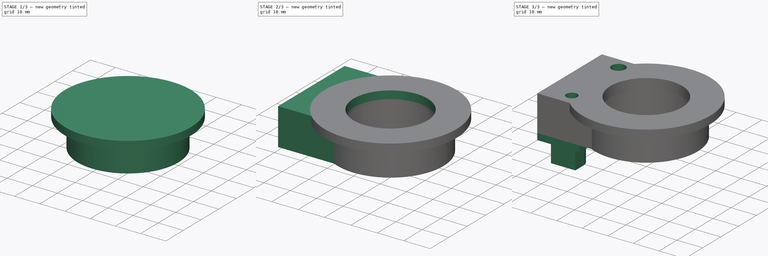
[diagram: build sequence overview — one tinted view per stage of 3, left to right]
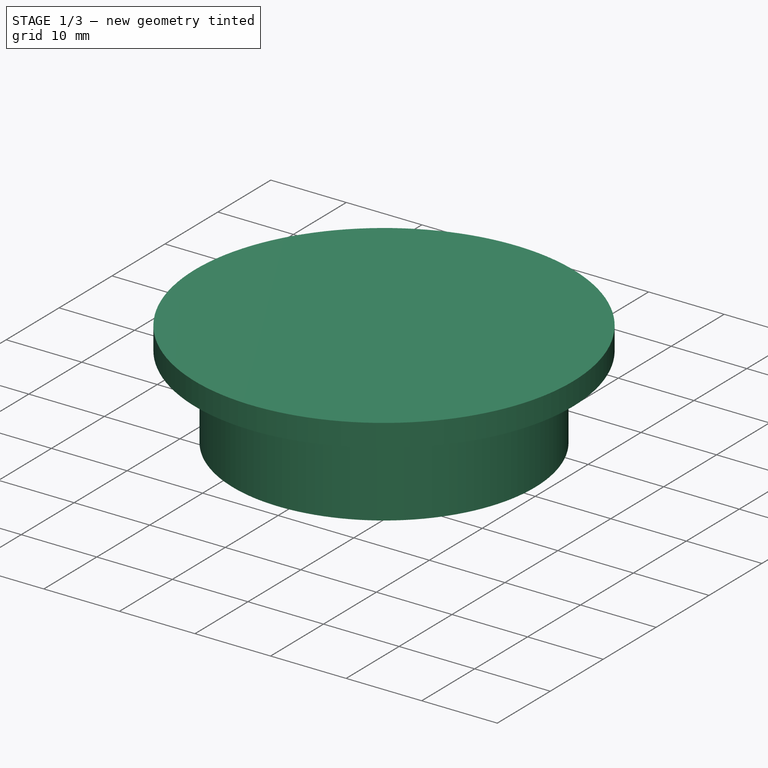
[diagram: stage 1 of 3 — iso view after this stage's code; geometry added in this stage tinted green]
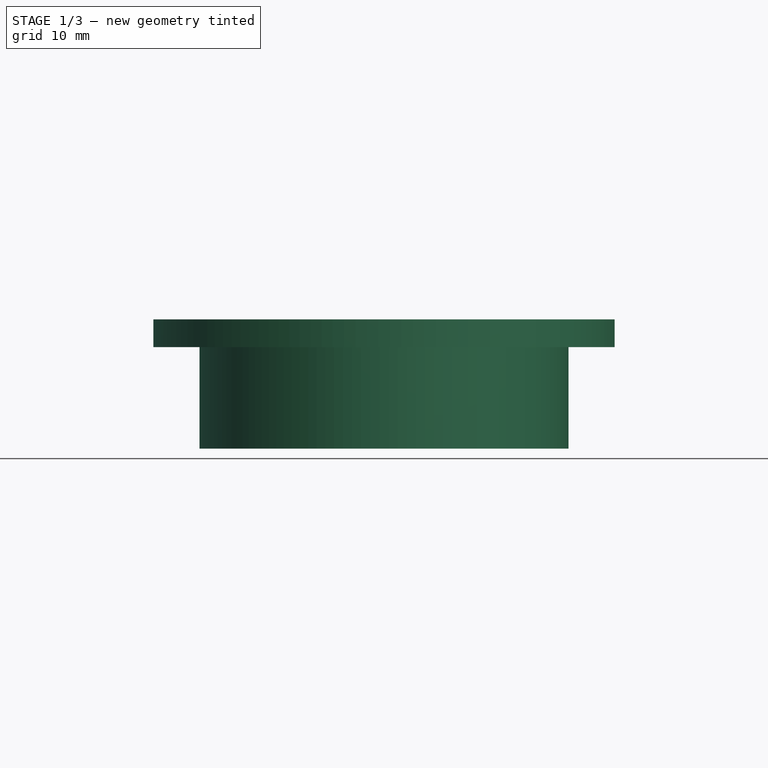
[diagram: stage 1 of 3 — front view after this stage's code; geometry added in this stage tinted green]
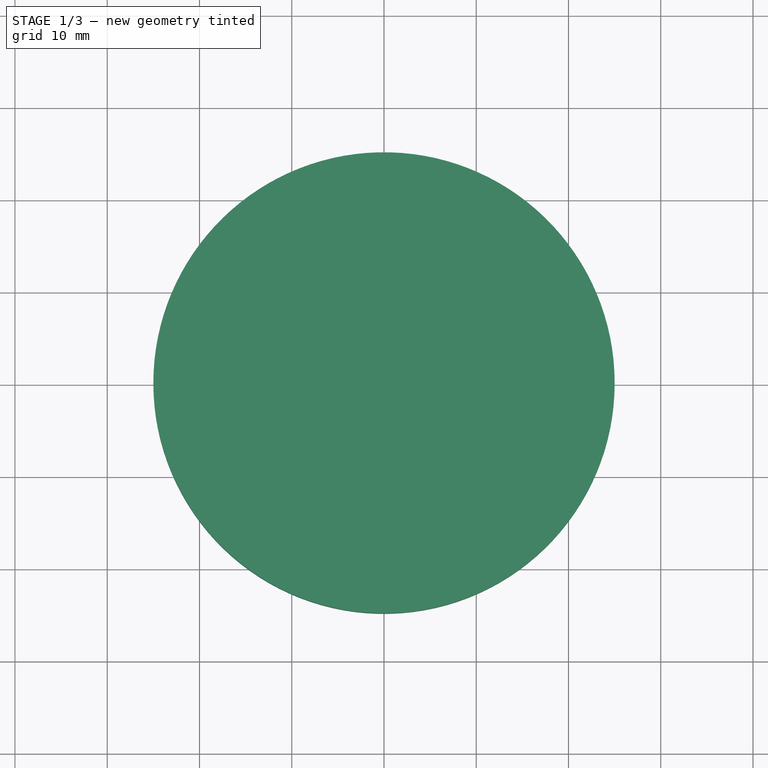
[diagram: stage 1 of 3 — top view after this stage's code; geometry added in this stage tinted green]
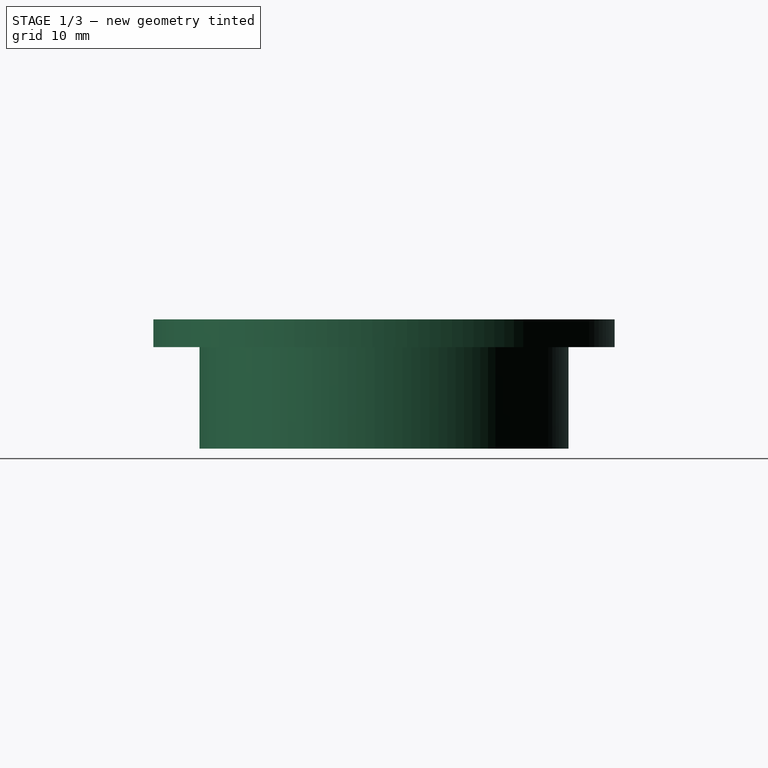
[diagram: stage 1 of 3 — right view after this stage's code; geometry added in this stage tinted green]
FCSTD DOCUMENT  (FreeCAD 0.19R24276 (Git))
Label: SC_v2_bear_support_V1
License: All rights reserved
LicenseURL: http://en.wikipedia.org/wiki/All_rights_reserved
objects: Sketcher::SketchObject×8, PartDesign::Pad×6, PartDesign::Pocket×2, PartDesign::Body×1
note: 25 computed .brp shape members not serialized (recipe doc carries the construction recipe); baked Part::Feature solids carry a one-line shape summary decoded from their .brp

FEATURE [Sketcher::SketchObject] Sketch  label="Sketch_d32_d40"
  FullyConstrained = true
  MapMode = 5
  Support = -> [XY_Plane]
  sketch-geometry (2):
    g0: Circle CenterX=0 CenterY=0 CenterZ=0 NormalX=0 NormalY=0 NormalZ=1 AngleXU=0 Radius=16
    g1: Circle CenterX=0 CenterY=0 CenterZ=0 NormalX=0 NormalY=0 NormalZ=1 AngleXU=0 Radius=20
  constraints (4):
    c: Coincident(g0,g-1)
    c: Diameter(g0) = 32
    c: Coincident(g1,g-1)
    c: Diameter(g1) = 40
FEATURE [PartDesign::Pad] Pad  label="Pad_h11"
  Direction = (1,1,1)
  Length = 11
  Length2 = 100
  Profile = -> Sketch
  Type = 0
FEATURE [Sketcher::SketchObject] Sketch001  label="Sketch001_d50"
  FullyConstrained = true
  MapMode = 5
  Placement = pos=(0,0,11) rot=(0,0,1;0rad)
  Support = -> [Pad]
  sketch-geometry (1):
    g0: Circle CenterX=0 CenterY=0 CenterZ=0 NormalX=0 NormalY=0 NormalZ=1 AngleXU=0 Radius=25
  constraints (2):
    c: Coincident(g0,g-1)
    c: Diameter(g0) = 50
FEATURE [PartDesign::Pad] Pad001  label="Pad001_h3"
  BaseFeature = -> Pad
  Direction = (1,1,1)
  Length = 3
  Length2 = 100
  Profile = -> Sketch001
  Type = 0
FEATURE [Sketcher::SketchObject] Sketch002  label="Sketch002_d28_d32"
  FullyConstrained = true
  MapMode = 5
  Placement = pos=(0,0,11) rot=(1,0,0;3.14159rad)
  Support = -> [Pad001]
  sketch-geometry (2):
    g0: Circle CenterX=0 CenterY=0 CenterZ=0 NormalX=0 NormalY=0 NormalZ=1 AngleXU=0 Radius=14
    g1: Circle CenterX=0 CenterY=0 CenterZ=0 NormalX=0 NormalY=0 NormalZ=1 AngleXU=0 Radius=16
  constraints (4):
    c: Coincident(g0,g-1)
    c: Coincident(g1,g-1)
    c: Diameter(g1) = 32
    c: Diameter(g0) = 28
FEATURE [PartDesign::Pad] Pad002  label="Pad002_h1"
  BaseFeature = -> Pad001
  Direction = (1,1,1)
  Length = 1
  Length2 = 100
  Profile = -> Sketch002
  Type = 0
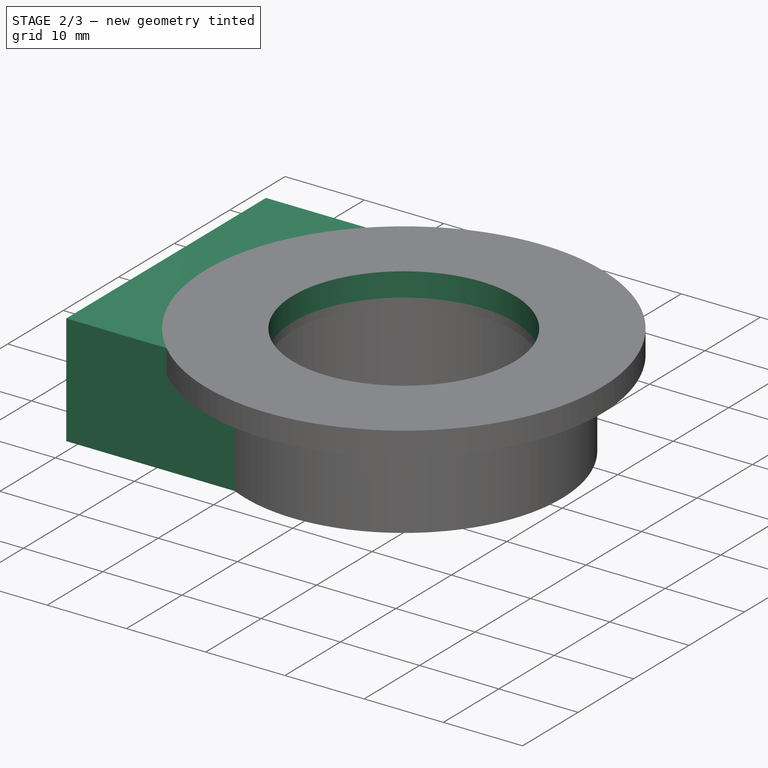
[diagram: stage 2 of 3 — iso view after this stage's code; geometry added in this stage tinted green]
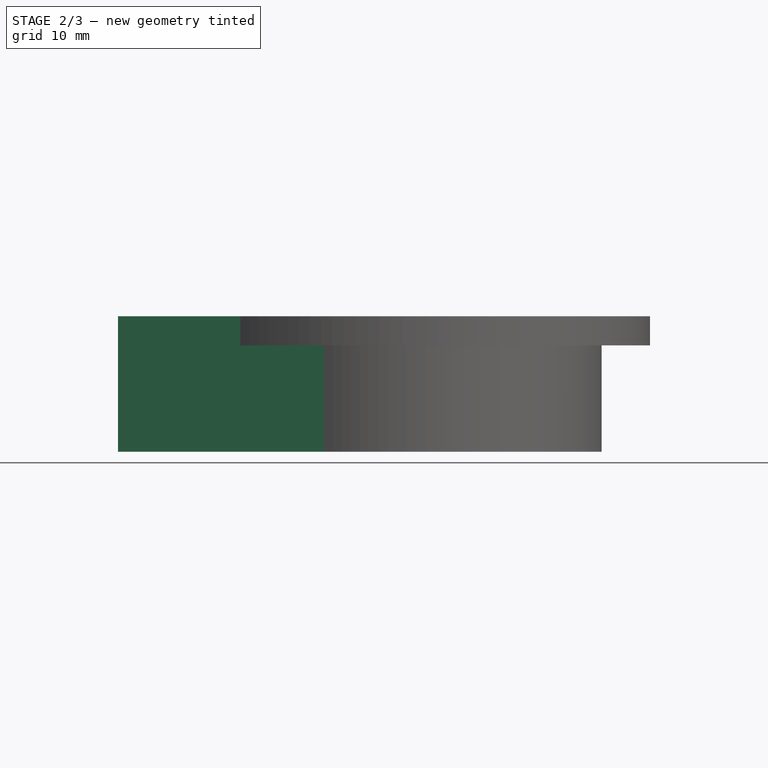
[diagram: stage 2 of 3 — front view after this stage's code; geometry added in this stage tinted green]
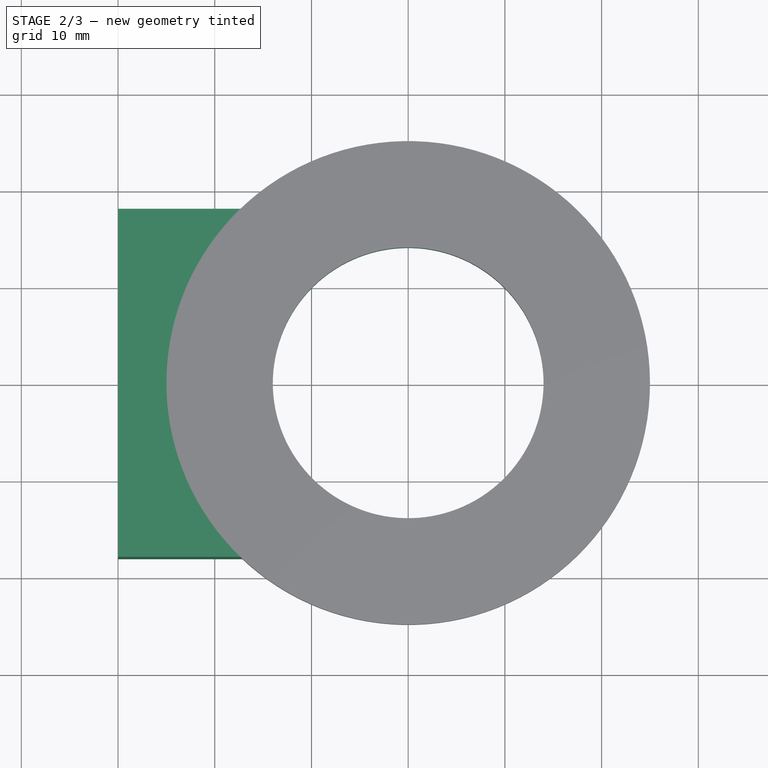
[diagram: stage 2 of 3 — top view after this stage's code; geometry added in this stage tinted green]
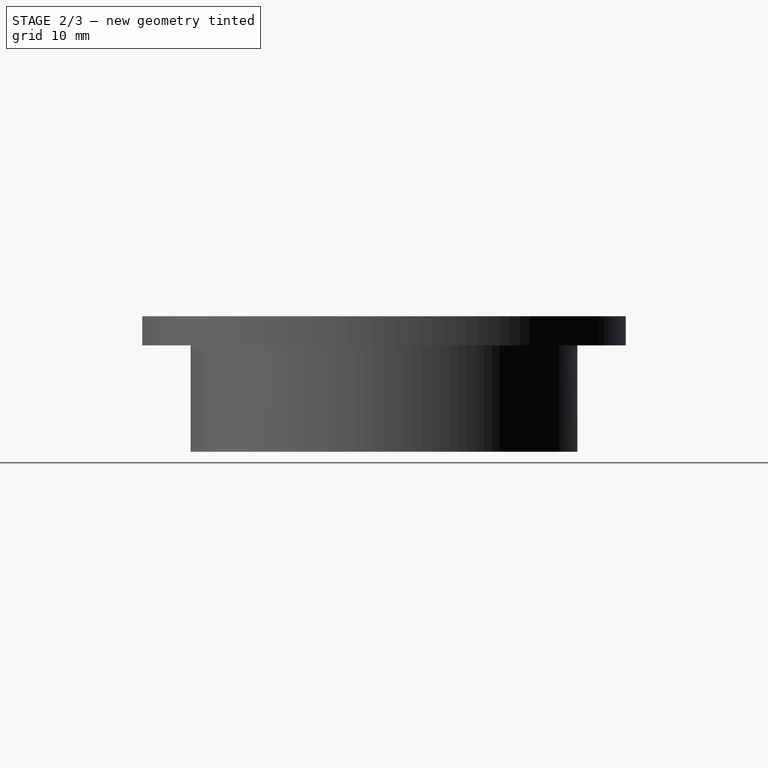
[diagram: stage 2 of 3 — right view after this stage's code; geometry added in this stage tinted green]
FEATURE [Sketcher::SketchObject] Sketch003  label="Sketch003_d28"
  FullyConstrained = true
  MapMode = 5
  Placement = pos=(0,0,11) rot=(1,0,0;3.14159rad)
  Support = -> [Pad002]
  sketch-geometry (1):
    g0: Circle CenterX=0 CenterY=0 CenterZ=0 NormalX=0 NormalY=0 NormalZ=1 AngleXU=0 Radius=14
  constraints (2):
    c: Coincident(g0,g-1)
    c: Diameter(g0) = 28
FEATURE [PartDesign::Pocket] Pocket
  BaseFeature = -> Pad002
  Length = 5
  Length2 = 100
  Profile = -> Sketch003
  Type = 1
FEATURE [Sketcher::SketchObject] Sketch004  label="Sketch004_d32_d40"
  FullyConstrained = false
  MapMode = 5
  Placement = pos=(0,0,0) rot=(1,0,0;3.14159rad)
  Support = -> [Pocket]
  sketch-geometry (11):
    g0: LineSegment StartX=0 StartY=0 StartZ=0 EndX=-7 EndY=0 EndZ=0
    g1: Circle CenterX=-17 CenterY=13 CenterZ=0 NormalX=0 NormalY=0 NormalZ=1 AngleXU=0 Radius=2.5
    g2: Circle CenterX=-17 CenterY=-13 CenterZ=0 NormalX=0 NormalY=0 NormalZ=1 AngleXU=0 Radius=2.5
    g3: LineSegment StartX=-7 StartY=0 StartZ=0 EndX=-17 EndY=0 EndZ=0
    g4: LineSegment StartX=-7 StartY=-18 StartZ=0 EndX=-7 EndY=18 EndZ=0
    g5: ArcOfCircle CenterX=0 CenterY=0 CenterZ=0 NormalX=0 NormalY=0 NormalZ=1 AngleXU=0 Radius=20 StartAngle=4.26136 EndAngle=8.30501
    g6: Circle CenterX=0 CenterY=0 CenterZ=0 NormalX=0 NormalY=0 NormalZ=1 AngleXU=0 Radius=16
    g7: LineSegment StartX=-30 StartY=18 StartZ=0 EndX=-8.7178 EndY=18 EndZ=0
    g8: LineSegment StartX=-8.7178 StartY=-18 StartZ=0 EndX=-30 EndY=-18 EndZ=0
    g9: LineSegment StartX=-30 StartY=-18 StartZ=0 EndX=-30 EndY=18 EndZ=0
    g10: LineSegment StartX=-17 StartY=0 StartZ=0 EndX=-30 EndY=0 EndZ=0
  constraints (29):
    c: Coincident(g0,g-1)
    c: PointOnObject(g0,g-1)
    c: Vertical(g2,g1)
    c: Equal(g1,g2)
    c: Diameter(g1) = 5
    c: DistanceX(g2,g0) = 10
    c: DistanceY(g2,g1) = 26
    c: Coincident(g3,g0)
    c: PointOnObject(g3,g-1)
    c: Symmetric(g2,g1,g3)
    c: Vertical(g4)
    c: Coincident(g5,g-1)
    c: Diameter(g5) = 40
    c: Coincident(g6,g5)
    c: Diameter(g6) = 32
    c: Coincident(g8,g9)
    c: Coincident(g9,g7)
    c: Horizontal(g7)
    c: Horizontal(g8)
    c: Vertical(g9)
    c: Coincident(g7,g5)
    c: Coincident(g10,g3)
    c: Horizontal(g10)
    c: Symmetric(g7,g8,g10)
    c: DistanceY(g9,g9) = 36
    c: DistanceX(g8,g4) = 23
    c: Coincident(g8,g5)
    c: Symmetric(g4,g4,g0)
    c: DistanceX(g8,g5) = 30
FEATURE [PartDesign::Pad] Pad003  label="Pad003_h14"
  BaseFeature = -> Pocket
  Direction = (1,1,1)
  Length = 14
  Length2 = 100
  Profile = -> Sketch004
  Reversed = true
  Type = 0
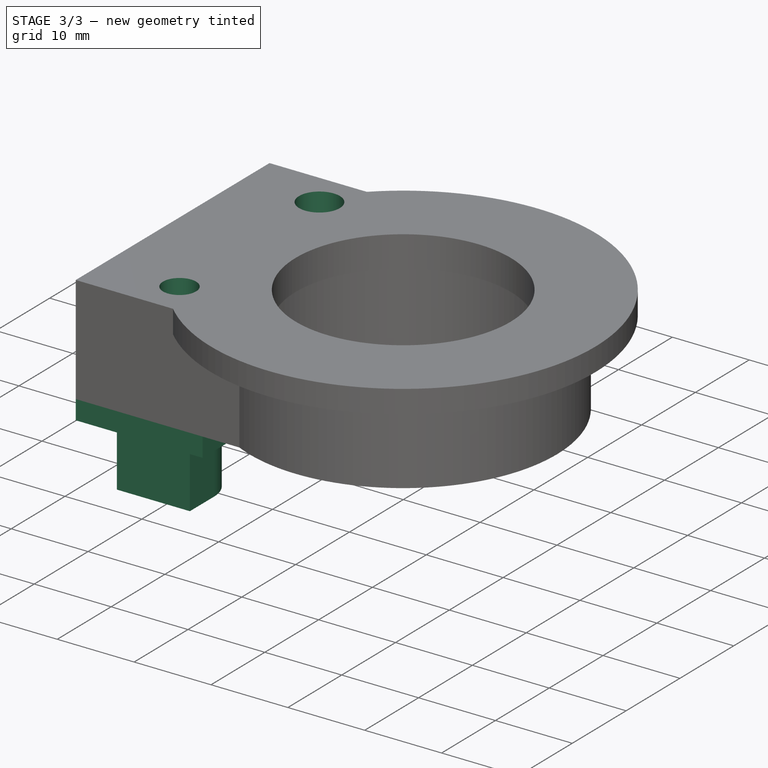
[diagram: stage 3 of 3 — iso view after this stage's code; geometry added in this stage tinted green]
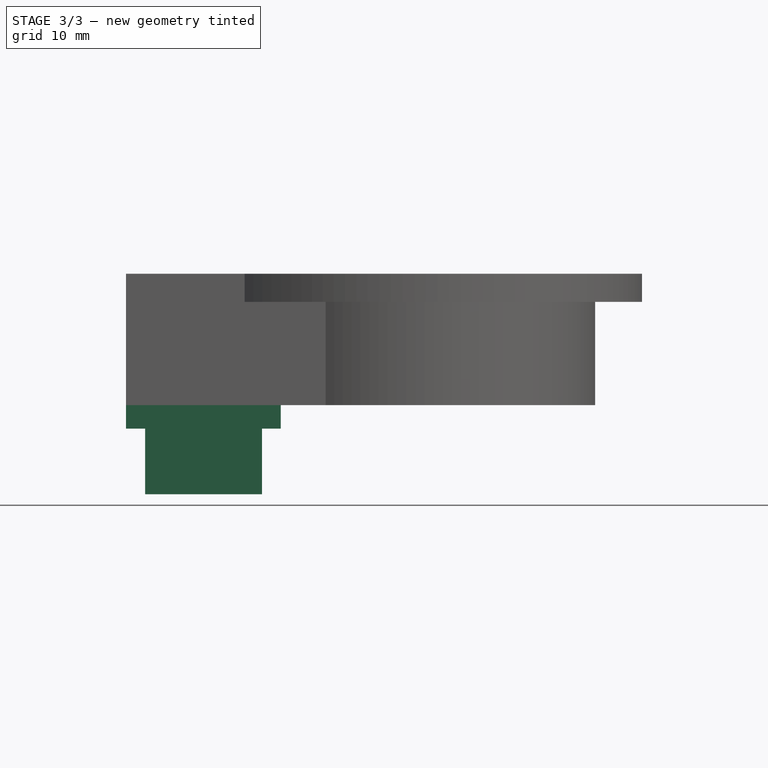
[diagram: stage 3 of 3 — front view after this stage's code; geometry added in this stage tinted green]
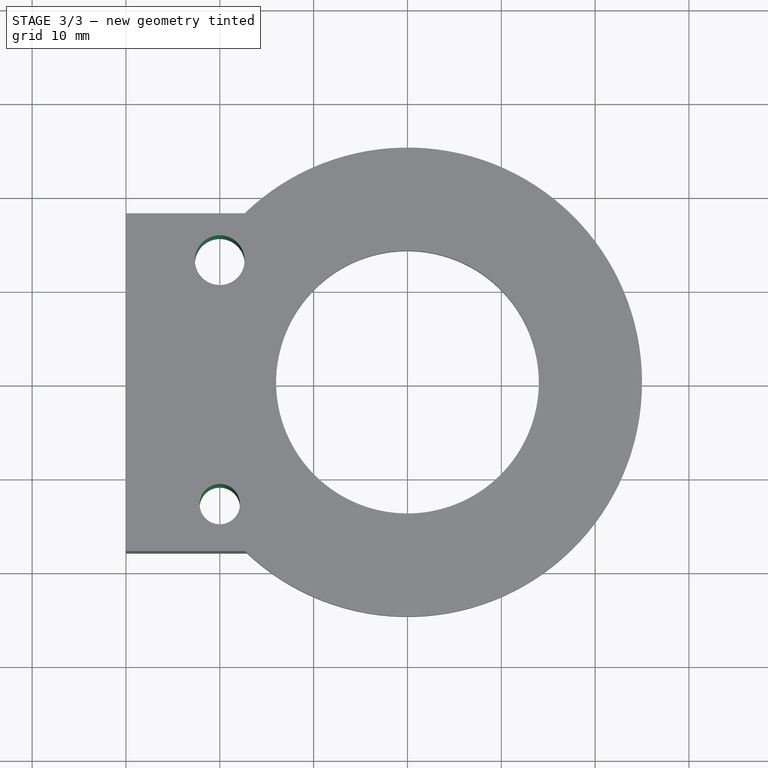
[diagram: stage 3 of 3 — top view after this stage's code; geometry added in this stage tinted green]
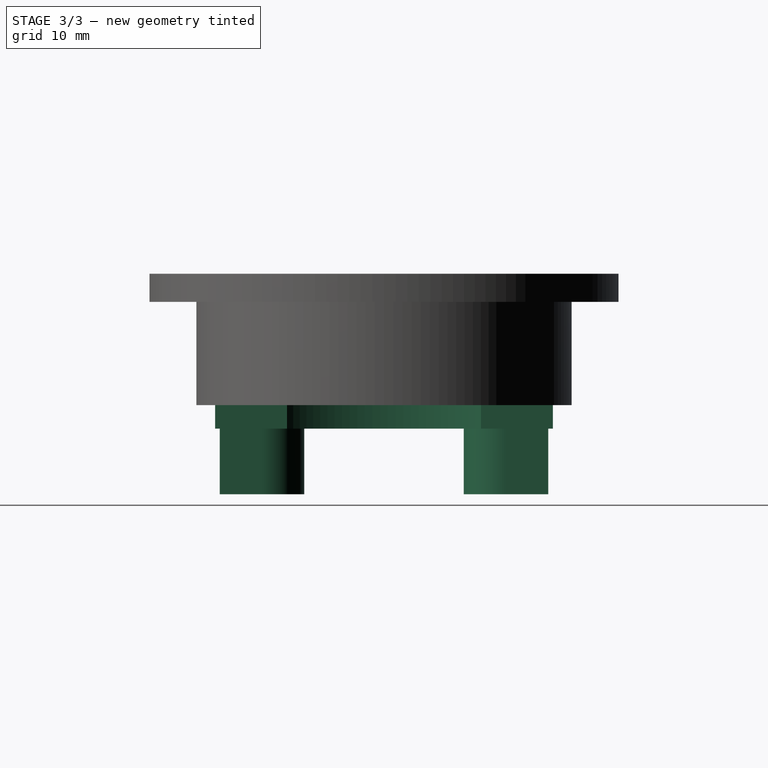
[diagram: stage 3 of 3 — right view after this stage's code; geometry added in this stage tinted green]
FEATURE [Sketcher::SketchObject] Sketch005  label="Sketch005_L16,5x36"
  FullyConstrained = true
  MapMode = 5
  Placement = pos=(0,0,0) rot=(1,0,0;3.14159rad)
  Support = -> [Pad003]
  sketch-geometry (7):
    g0: LineSegment StartX=-30 StartY=18 StartZ=0 EndX=-13.5 EndY=18 EndZ=0
    g1: LineSegment StartX=-13.5 StartY=18 StartZ=0 EndX=-13.5 EndY=10.332 EndZ=0
    g2: LineSegment StartX=-13.5 StartY=-18 StartZ=0 EndX=-30 EndY=-18 EndZ=0
    g3: LineSegment StartX=-30 StartY=-18 StartZ=0 EndX=-30 EndY=18 EndZ=0
    g4: LineSegment StartX=0 StartY=0 StartZ=0 EndX=-30 EndY=0 EndZ=0
    g5: ArcOfCircle CenterX=0 CenterY=0 CenterZ=0 NormalX=0 NormalY=0 NormalZ=1 AngleXU=0 Radius=17 StartAngle=2.48835 EndAngle=3.79483
    g6: LineSegment StartX=-13.5 StartY=-10.332 StartZ=0 EndX=-13.5 EndY=-18 EndZ=0
  constraints (20):
    c: Coincident(g0,g1)
    c: Coincident(g6,g2)
    c: Coincident(g2,g3)
    c: Coincident(g3,g0)
    c: Horizontal(g0)
    c: Horizontal(g2)
    c: Vertical(g1)
    c: Vertical(g3)
    c: Coincident(g4,g-1)
    c: PointOnObject(g4,g-1)
    c: Symmetric(g2,g0,g4)
    c: DistanceX(g2,g-1) = 30
    c: DistanceY(g3,g3) = 36
    c: DistanceX(g2,g2) = 16.5
    c: Coincident(g5,g-1)
    c: Diameter(g5) = 34
    c: PointOnObject(g5,g1)
    c: Coincident(g1,g5)
    c: Tangent(g1,g6)
    c: PointOnObject(g6,g5)
FEATURE [PartDesign::Pad] Pad004  label="Pad004_h2,5"
  BaseFeature = -> Pad003
  Direction = (1,1,1)
  Length = 2.5
  Length2 = 100
  Profile = -> Sketch005
  Type = 0
FEATURE [Sketcher::SketchObject] Sketch006
  FullyConstrained = false
  MapMode = 5
  Placement = pos=(0,0,-2.5) rot=(1,0,0;3.14159rad)
  Support = -> [Pad004]
  sketch-geometry (21):
    g0: LineSegment StartX=-27.9623 StartY=-8.5 StartZ=0 EndX=-20 EndY=-8.5 EndZ=0
    g1: LineSegment StartX=-27.9623 StartY=-17.5 StartZ=0 EndX=-27.9623 EndY=-8.5 EndZ=0
    g2: Circle CenterX=-20 CenterY=-13 CenterZ=0 NormalX=0 NormalY=0 NormalZ=1 AngleXU=0 Radius=2.6
    g3: LineSegment StartX=0 StartY=0 StartZ=0 EndX=-25.7265 EndY=0 EndZ=0
    g4: Circle CenterX=-20 CenterY=13 CenterZ=0 NormalX=0 NormalY=0 NormalZ=1 AngleXU=0 Radius=2.6
    g5: LineSegment StartX=-25 StartY=17.5 StartZ=0 EndX=-20 EndY=17.5 EndZ=0
    g6: LineSegment StartX=-20 StartY=17.5 StartZ=0 EndX=-20 EndY=8.5 EndZ=0
    g7: LineSegment StartX=-20 StartY=8.5 StartZ=0 EndX=-25 EndY=8.5 EndZ=0
    g8: LineSegment StartX=-25 StartY=8.5 StartZ=0 EndX=-25 EndY=17.5 EndZ=0
    g9: LineSegment StartX=-20 StartY=13 StartZ=0 EndX=-25 EndY=13 EndZ=0
    g10: LineSegment StartX=-20 StartY=13 StartZ=0 EndX=-20 EndY=17.5 EndZ=0
    g11: ArcOfCircle CenterX=-20 CenterY=13 CenterZ=0 NormalX=0 NormalY=0 NormalZ=1 AngleXU=0 Radius=4.5 StartAngle=4.71239 EndAngle=6.28319
    g12: LineSegment StartX=-20 StartY=-13 StartZ=0 EndX=-15.4815 EndY=-13 EndZ=0
    g13: ArcOfCircle CenterX=-20 CenterY=-13 CenterZ=0 NormalX=0 NormalY=0 NormalZ=1 AngleXU=0 Radius=4.5 StartAngle=0 EndAngle=1.5708
    g14: LineSegment StartX=-15.5 StartY=-13 StartZ=0 EndX=-15.5 EndY=-17.5 EndZ=0
    g15: LineSegment StartX=-15.5 StartY=-13 StartZ=0 EndX=-20 EndY=-13 EndZ=0
    g16: LineSegment StartX=-27.9623 StartY=-17.5 StartZ=0 EndX=-15.5 EndY=-17.5 EndZ=0
    g17: LineSegment StartX=-15.5 StartY=13 StartZ=0 EndX=-15.5 EndY=17.5 EndZ=0
    g18: LineSegment StartX=-20 StartY=17.5 StartZ=0 EndX=-15.5 EndY=17.5 EndZ=0
    g19: LineSegment StartX=-15.5 StartY=13 StartZ=0 EndX=-20 EndY=13 EndZ=0
    g20: LineSegment StartX=-20 StartY=17.5 StartZ=0 EndX=-20 EndY=13 EndZ=0
  constraints (52):
    c: Coincident(g1,g0)
    c: Horizontal(g0)
    c: Vertical(g1)
    c: DistanceY(g1,g1) = 9
    c: Diameter(g2) = 5.2
    c: Coincident(g3,g-1)
    c: PointOnObject(g3,g-1)
    c: DistanceX(g4,g-1) = 20
    c: Equal(g2,g4)
    c: Coincident(g5,g6)
    c: Coincident(g6,g7)
    c: Coincident(g7,g8)
    c: Coincident(g8,g5)
    c: Horizontal(g5)
    c: Horizontal(g7)
    c: Vertical(g6)
    c: Vertical(g8)
    c: Horizontal(g9)
    c: Symmetric(g5,g7,g9)
    c: Coincident(g10,g5)
    c: Vertical(g10)
    c: Coincident(g11,g4)
    c: PointOnObject(g11,g6)
    c: DistanceY(g3,g11) = 13
    c: DistanceX(g5,g5) = 5
    c: Coincident(g10,g11)
    c: Coincident(g11,g9)
    c: Horizontal(g12)
    c: Coincident(g13,g2)
    c: Coincident(g12,g2)
    c: DistanceY(g2,g3) = 13
    c: DistanceX(g2,g-1) = 20
    c: PointOnObject(g14,g13)
    c: Vertical(g14)
    c: Coincident(g15,g14)
    c: Coincident(g15,g2)
    c: Horizontal(g15)
    c: Coincident(g16,g1)
    c: Horizontal(g16)
    c: PointOnObject(g13,g12)
    c: Coincident(g13,g0)
    c: PointOnObject(g18,g11)
    c: Horizontal(g18)
    c: Coincident(g19,g17)
    c: Coincident(g19,g11)
    c: Horizontal(g19)
    c: Diameter(g11) = 9
    c: Coincident(g20,g18)
    c: Coincident(g20,g11)
    c: Vertical(g20)
    c: Coincident(g17,g18)
    c: Tangent(g11,g17) = -1.5708
FEATURE [Sketcher::SketchObject] Sketch007
  FullyConstrained = true
  MapMode = 5
  Placement = pos=(0,0,-9.5) rot=(1,0,0;3.14159rad)
  sketch-geometry (2):
    g0: Circle CenterX=-20 CenterY=13 CenterZ=0 NormalX=0 NormalY=0 NormalZ=1 AngleXU=0 Radius=2.15
    g1: Circle CenterX=-20 CenterY=-13 CenterZ=0 NormalX=0 NormalY=0 NormalZ=1 AngleXU=0 Radius=2.65
  constraints (6):
    c: Vertical(g1,g0)
    c: Diameter(g1) = 5.3
    c: Diameter(g0) = 4.3
    c: DistanceX(g1,g-1) = 20
    c: DistanceY(g1,g-1) = 13
    c: DistanceY(g-1,g0) = 13
FEATURE [PartDesign::Pad] Pad005
  BaseFeature = -> Pad004
  Direction = (1,1,1)
  Length = 7
  Length2 = 100
  Profile = -> Sketch006
  Type = 0
FEATURE [PartDesign::Pocket] Pocket001
  BaseFeature = -> Pad005
  Length = 5
  Length2 = 100
  Profile = -> Sketch007
  Type = 1
FEATURE [PartDesign::Body] Body
  Group = -> [Sketch,Pad,Sketch001,Pad001,Sketch002,Pad002,Sketch003,Pocket,Sketch004,Pad003,Sketch005,Pad004,Sketch006,Pad005,Sketch007,Pocket001]
  Origin = -> Origin
  Tip = -> Pocket001
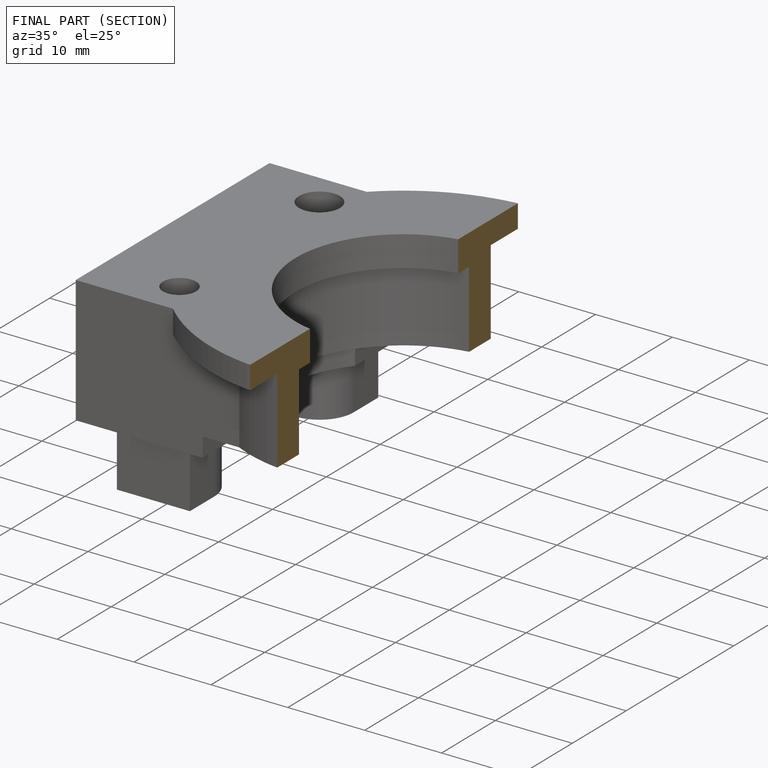
[diagram: finished part — half-section view (interior)]
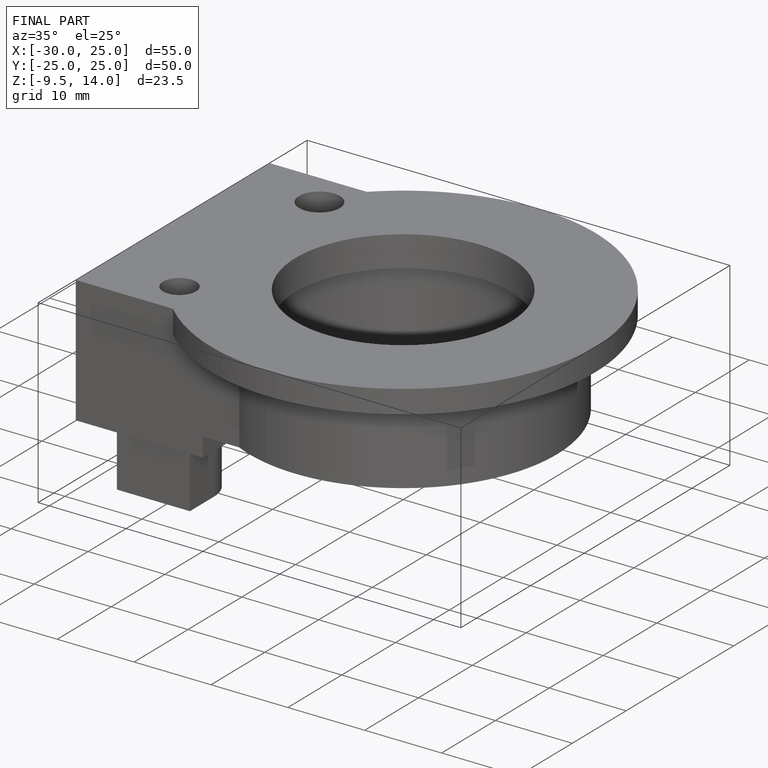
[diagram: finished part — iso view with bounding-box wireframe]
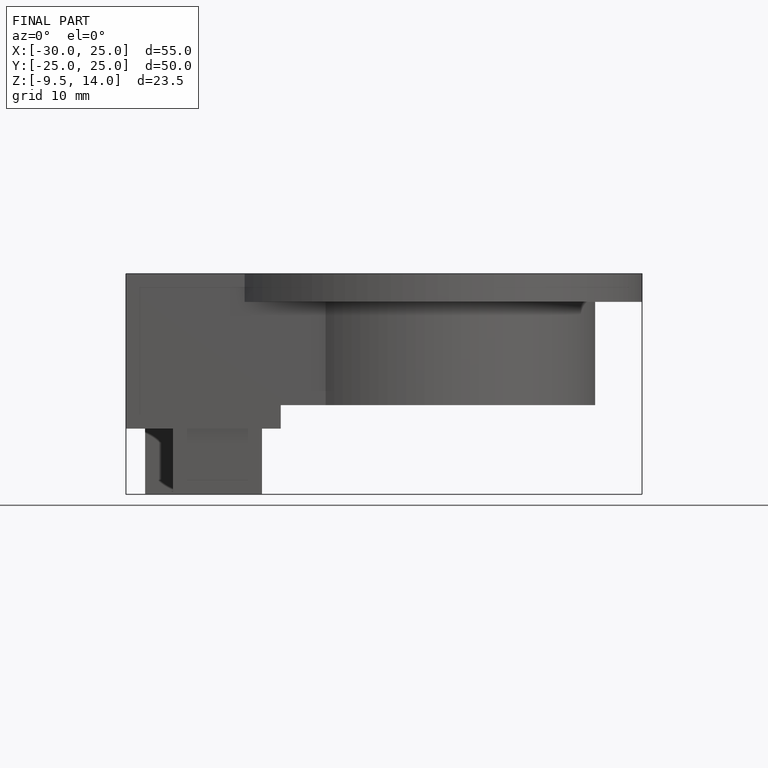
[diagram: finished part — front view with bounding-box wireframe]
